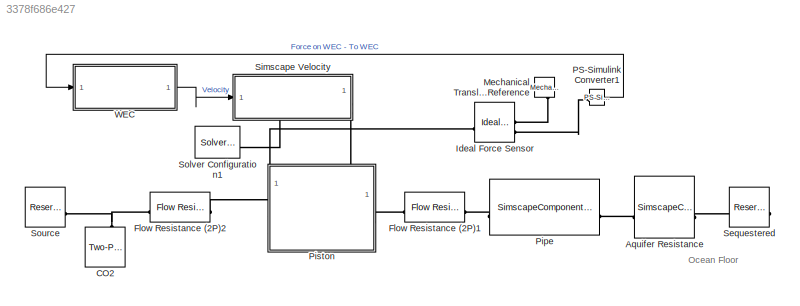
MODEL slx_3378f686e427
KIND model
CONFIG AbsTol = 1e-3
CONFIG EnableMultiTasking = off
CONFIG FixedStep = 0.01
CONFIG MaxStep = 0.01
CONFIG MinStep = auto
CONFIG RelTol = 1e-3
CONFIG SampleTimeConstraint = Unconstrained
CONFIG SolverName = daessc
CONFIG StartTime = 0
CONFIG StopTime = 100
BLOCK [SimscapeComponentBlock] Aquifer Resistance
  ClassName = aquiferblock
  ComponentPath = aquiferblock
  ComponentVariantNames = ["aquiferblock"]
  ComponentVariants = ["aquiferblock"]
  CopyFcn = simscape.engine.sli.internal.componentblockcallback(gcbh,'COPY')
  InternalSimscapePortConfiguration = {"Bottom":[],"Left":[{"id":"A","label":"A","type":"foundation.two_phase_fluid.two_phase_fluid"}],"Right":[{"id":"B","label":"B","type":"foundation.two_phase_fluid.two_phase_fluid"}],"Top":[]}
  K = 3e-12
  K_conf = compiletime
  K_unit = m^2
  MaskType = Flow Resistance (2P)
  PreCopyFcn = simscape.engine.sli.internal.componentblockcallback(gcbh,'PRECOPY')
  PreDeleteFcn = simscape.engine.sli.internal.componentblockcallback(gcbh,'PREDELETE')
  SchemaVersion = 1
  SourceFile = aquiferblock
  area = 5e6
  area_conf = compiletime
  area_unit = m^2
  h = 3e2
  h_conf = compiletime
  h_unit = m
  mu = 6e-5
  mu_conf = compiletime
  mu_unit = Pa*s
BLOCK [Reference] CO2  REF=SimscapeFluids_lib/Two-Phase Fluid/Utilities/Two-Phase Fluid
Predefined
Properties (2P)
  NameLocation = right
  SourceBlock = SimscapeFluids_lib/Two-Phase Fluid/Utilities/Two-Phase Fluid\nPredefined\nProperties (2P)
  SourceType = Two-Phase Fluid\nPredefined\nProperties (2P)
BLOCK [Reference] Flow Resistance (2P)1  REF=fl_lib/Two-Phase Fluid/Elements/Flow Resistance (2P)
  NameLocation = top
  SourceBlock = fl_lib/Two-Phase Fluid/Elements/Flow Resistance (2P)
  SourceType = Flow Resistance (2P)
BLOCK [Reference] Flow Resistance (2P)2  REF=fl_lib/Two-Phase Fluid/Elements/Flow Resistance (2P)
  SourceBlock = fl_lib/Two-Phase Fluid/Elements/Flow Resistance (2P)
  SourceType = Flow Resistance (2P)
BLOCK [Reference] Ideal Force Sensor  REF=fl_lib/Mechanical/Mechanical Sensors/Ideal Force Sensor
  SourceBlock = fl_lib/Mechanical/Mechanical Sensors/Ideal Force Sensor
  SourceType = Ideal Force Sensor
BLOCK [Reference] Mechanical Translational Reference  REF=fl_lib/Mechanical/Translational
Elements/Mechanical
Translational
Reference
  NameLocation = right
  SourceBlock = fl_lib/Mechanical/Translational\nElements/Mechanical\nTranslational\nReference
  SourceType = Mechanical\nTranslational\nReference
BLOCK [Reference] PS-Simulink Converter1  REF=nesl_utility/PS-Simulink
Converter
  SourceBlock = nesl_utility/PS-Simulink\nConverter
  SourceType = PS-Simulink\nConverter
BLOCK [SimscapeComponentBlock] Pipe
  ClassName = segmentedpipe_2P
  ComponentPath = segmentedpipe_2P
  ComponentVariantNames = ["segmentedpipe_2P"]
  ComponentVariants = ["segmentedpipe_2P"]
  CopyFcn = simscape.engine.sli.internal.componentblockcallback(gcbh,'COPY')
  Dh = d_pipe
  Dh_conf = compiletime
  Dh_unit = m
  InternalSimscapePortConfiguration = {"Bottom":[],"Left":[{"id":"A","label":"A","type":"foundation.two_phase_fluid.two_phase_fluid"}],"Right":[{"id":"B","label":"B","type":"foundation.two_phase_fluid.two_phase_fluid"}],"Top":[]}
  MaskType = segmentedpipe_2P
  N = N
  N_conf = compiletime
  N_unit = 1
  PreCopyFcn = simscape.engine.sli.internal.componentblockcallback(gcbh,'PRECOPY')
  PreDeleteFcn = simscape.engine.sli.internal.componentblockcallback(gcbh,'PREDELETE')
  SchemaVersion = 1
  SourceFile = segmentedpipe_2P
  T_init = T
  T_init_conf = compiletime
  T_init_unit = K
  area = A_pipe
  area_conf = compiletime
  area_unit = m^2
  g = g
  g_conf = compiletime
  g_unit = m/s^2
  p_init = P_floor
  p_init_conf = compiletime
  p_init_unit = MPa
  segm_length = H/N
  segm_length_conf = compiletime
  segm_length_unit = m
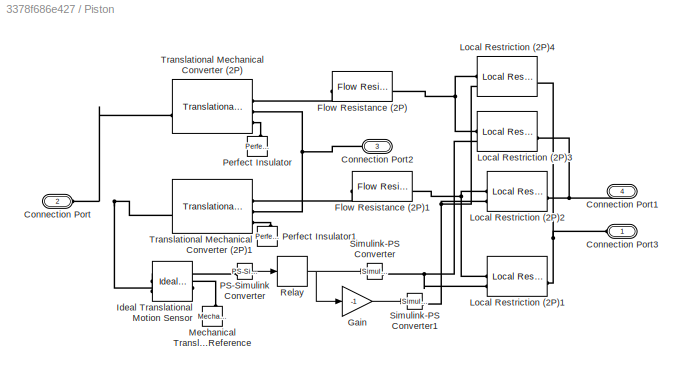
BLOCK [SubSystem] Piston
  PortSchema = {"entries":[{"content":{"sides":[{"content":{"connectorIds":["LConn1"]},"type":"ConnectorPlacement.EquallySpacedRectSide","uuid":"7019ddc4-d8ce-43f2-8b4e-ea332f4aaeee"},{"content":{"connectorIds":["RConn1"],"side":"RIGHT"},"type":"ConnectorPlacement.EquallySpacedRectSide","uuid":"7985d674-21d2-45f1-974e-88451809d901"},{"content":{"connectorIds":["LConn2","LConn3"],"side":"TOP"},"type":"ConnectorPl...<+388ch>
BLOCK [PMIOPort] Piston/Connection Port
  Port = 2
  Side = Left
BLOCK [PMIOPort] Piston/Connection Port1
  Port = 4
  Side = Right
BLOCK [PMIOPort] Piston/Connection Port2
  Port = 3
  Side = Left
BLOCK [PMIOPort] Piston/Connection Port3
  Side = Left
BLOCK [Reference] Piston/Flow Resistance (2P)  REF=fl_lib/Two-Phase Fluid/Elements/Flow Resistance (2P)
  SourceBlock = fl_lib/Two-Phase Fluid/Elements/Flow Resistance (2P)
  SourceType = Flow Resistance (2P)
BLOCK [Reference] Piston/Flow Resistance (2P)1  REF=fl_lib/Two-Phase Fluid/Elements/Flow Resistance (2P)
  SourceBlock = fl_lib/Two-Phase Fluid/Elements/Flow Resistance (2P)
  SourceType = Flow Resistance (2P)
BLOCK [Gain] Piston/Gain
  Gain = -1
BLOCK [Reference] Piston/Ideal Translational Motion Sensor  REF=fl_lib/Mechanical/Mechanical Sensors/Ideal Translational
Motion Sensor
  SourceBlock = fl_lib/Mechanical/Mechanical Sensors/Ideal Translational\nMotion Sensor
  SourceType = Ideal Translational\nMotion Sensor
BLOCK [Reference] Piston/Local Restriction (2P)1  REF=fl_lib/Two-Phase Fluid/Elements/Local Restriction
(2P)
  SourceBlock = fl_lib/Two-Phase Fluid/Elements/Local Restriction\n(2P)
  SourceType = Local Restriction\n(2P)
BLOCK [Reference] Piston/Local Restriction (2P)2  REF=fl_lib/Two-Phase Fluid/Elements/Local Restriction
(2P)
  SourceBlock = fl_lib/Two-Phase Fluid/Elements/Local Restriction\n(2P)
  SourceType = Local Restriction\n(2P)
BLOCK [Reference] Piston/Local Restriction (2P)3  REF=fl_lib/Two-Phase Fluid/Elements/Local Restriction
(2P)
  SourceBlock = fl_lib/Two-Phase Fluid/Elements/Local Restriction\n(2P)
  SourceType = Local Restriction\n(2P)
BLOCK [Reference] Piston/Local Restriction (2P)4  REF=fl_lib/Two-Phase Fluid/Elements/Local Restriction
(2P)
  SourceBlock = fl_lib/Two-Phase Fluid/Elements/Local Restriction\n(2P)
  SourceType = Local Restriction\n(2P)
BLOCK [Reference] Piston/Mechanical Translational Reference  REF=fl_lib/Mechanical/Translational
Elements/Mechanical
Translational
Reference
  NameLocation = right
  SourceBlock = fl_lib/Mechanical/Translational\nElements/Mechanical\nTranslational\nReference
  SourceType = Mechanical\nTranslational\nReference
BLOCK [Reference] Piston/PS-Simulink Converter  REF=nesl_utility/PS-Simulink
Converter
  SourceBlock = nesl_utility/PS-Simulink\nConverter
  SourceType = PS-Simulink\nConverter
BLOCK [Reference] Piston/Perfect Insulator  REF=fl_lib/Thermal/Thermal Elements/Perfect Insulator
  NameLocation = right
  SourceBlock = fl_lib/Thermal/Thermal Elements/Perfect Insulator
  SourceType = Perfect Insulator
BLOCK [Reference] Piston/Perfect Insulator1  REF=fl_lib/Thermal/Thermal Elements/Perfect Insulator
  NameLocation = right
  SourceBlock = fl_lib/Thermal/Thermal Elements/Perfect Insulator
  SourceType = Perfect Insulator
BLOCK [Relay] Piston/Relay
  OffOutputValue = -1
  OffSwitchValue = 0
  OnSwitchValue = 0
BLOCK [Reference] Piston/Simulink-PS Converter  REF=nesl_utility/Simulink-PS
Converter
  SourceBlock = nesl_utility/Simulink-PS\nConverter
  SourceType = Simulink-PS\nConverter
BLOCK [Reference] Piston/Simulink-PS Converter1  REF=nesl_utility/Simulink-PS
Converter
  SourceBlock = nesl_utility/Simulink-PS\nConverter
  SourceType = Simulink-PS\nConverter
BLOCK [Reference] Piston/Translational Mechanical Converter (2P)  REF=fl_lib/Two-Phase Fluid/Elements/Translational
Mechanical Converter
(2P)
  SourceBlock = fl_lib/Two-Phase Fluid/Elements/Translational\nMechanical Converter\n(2P)
  SourceType = Translational\nMechanical Converter\n(2P)
BLOCK [Reference] Piston/Translational Mechanical Converter (2P)1  REF=fl_lib/Two-Phase Fluid/Elements/Translational
Mechanical Converter
(2P)
  SourceBlock = fl_lib/Two-Phase Fluid/Elements/Translational\nMechanical Converter\n(2P)
  SourceType = Translational\nMechanical Converter\n(2P)
BLOCK [Reference] Sequestered  REF=fl_lib/Two-Phase Fluid/Elements/Reservoir (2P)
  SourceBlock = fl_lib/Two-Phase Fluid/Elements/Reservoir (2P)
  SourceType = Reservoir (2P)
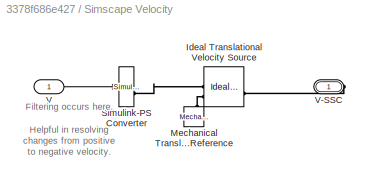
BLOCK [SubSystem] Simscape Velocity
  PortSchema = {"entries":[{"content":{"sides":[{"content":{"connectorIds":["In1"]},"type":"ConnectorPlacement.EquallySpacedRectSide","uuid":"29be8089-37ae-492d-a11a-e2815524b6c8"},{"content":{"side":"RIGHT"},"type":"ConnectorPlacement.EquallySpacedRectSide","uuid":"e61fb237-f2e0-4128-aecd-39dd1856904f"},{"content":{"side":"TOP"},"type":"ConnectorPlacement.EquallySpacedRectSide","uuid":"072101a8-0726-462b-b2bf-5...<+350ch>
BLOCK [Reference] Simscape Velocity/Ideal Translational Velocity Source  REF=fl_lib/Mechanical/Mechanical Sources/Ideal Translational
Velocity Source
  SourceBlock = fl_lib/Mechanical/Mechanical Sources/Ideal Translational\nVelocity Source
  SourceType = Ideal Translational\nVelocity Source
BLOCK [Reference] Simscape Velocity/Mechanical Translational Reference  REF=fl_lib/Mechanical/Translational
Elements/Mechanical
Translational
Reference
  NameLocation = right
  SourceBlock = fl_lib/Mechanical/Translational\nElements/Mechanical\nTranslational\nReference
  SourceType = Mechanical\nTranslational\nReference
BLOCK [Reference] Simscape Velocity/Simulink-PS Converter  REF=nesl_utility/Simulink-PS
Converter
  SourceBlock = nesl_utility/Simulink-PS\nConverter
  SourceType = Simulink-PS\nConverter
BLOCK [Inport] Simscape Velocity/V
BLOCK [PMIOPort] Simscape Velocity/V-SSC
  Side = Right
BLOCK [Reference] Solver Configuration1  REF=nesl_utility/Solver
Configuration
  SourceBlock = nesl_utility/Solver\nConfiguration
  SourceType = Solver\nConfiguration
BLOCK [Reference] Source  REF=fl_lib/Two-Phase Fluid/Elements/Reservoir (2P)
  SourceBlock = fl_lib/Two-Phase Fluid/Elements/Reservoir (2P)
  SourceType = Reservoir (2P)
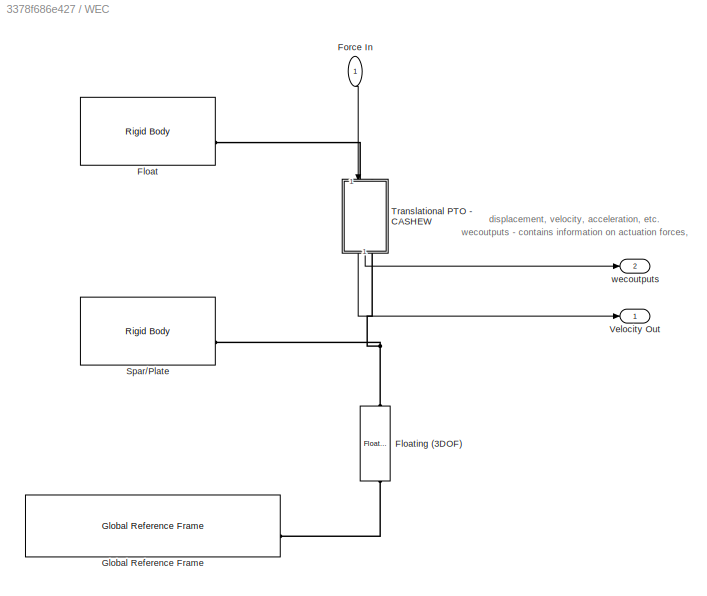
BLOCK [SubSystem] WEC
BLOCK [Reference] WEC/Float  REF=WECSim_Lib_Body_Elements/Rigid Body
  AttributesFormatString = %<body>
  SourceBlock = WECSim_Lib_Body_Elements/Rigid Body
  SourceType = Rigid Body
BLOCK [Reference] WEC/Floating (3DOF)  REF=WECSim_Lib_Constraints/Floating (3DOF)
  AttributesFormatString = %<constraint>
  NameLocation = right
  SourceBlock = WECSim_Lib_Constraints/Floating (3DOF)
  SourceType = Constraints
BLOCK [Inport] WEC/Force In
  NameLocation = left
BLOCK [Reference] WEC/Global Reference Frame  REF=WECSim_Lib_Frames/Global Reference Frame
  SourceBlock = WECSim_Lib_Frames/Global Reference Frame
  SourceType = Frames
BLOCK [Reference] WEC/Spar//Plate  REF=WECSim_Lib_Body_Elements/Rigid Body
  AttributesFormatString = %<body>
  SourceBlock = WECSim_Lib_Body_Elements/Rigid Body
  SourceType = Rigid Body
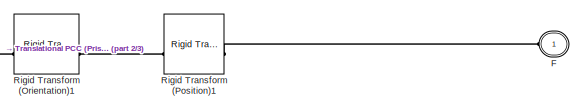
[diagram: WEC/Translational PTO - CASHEW - part 1/3, top right region]
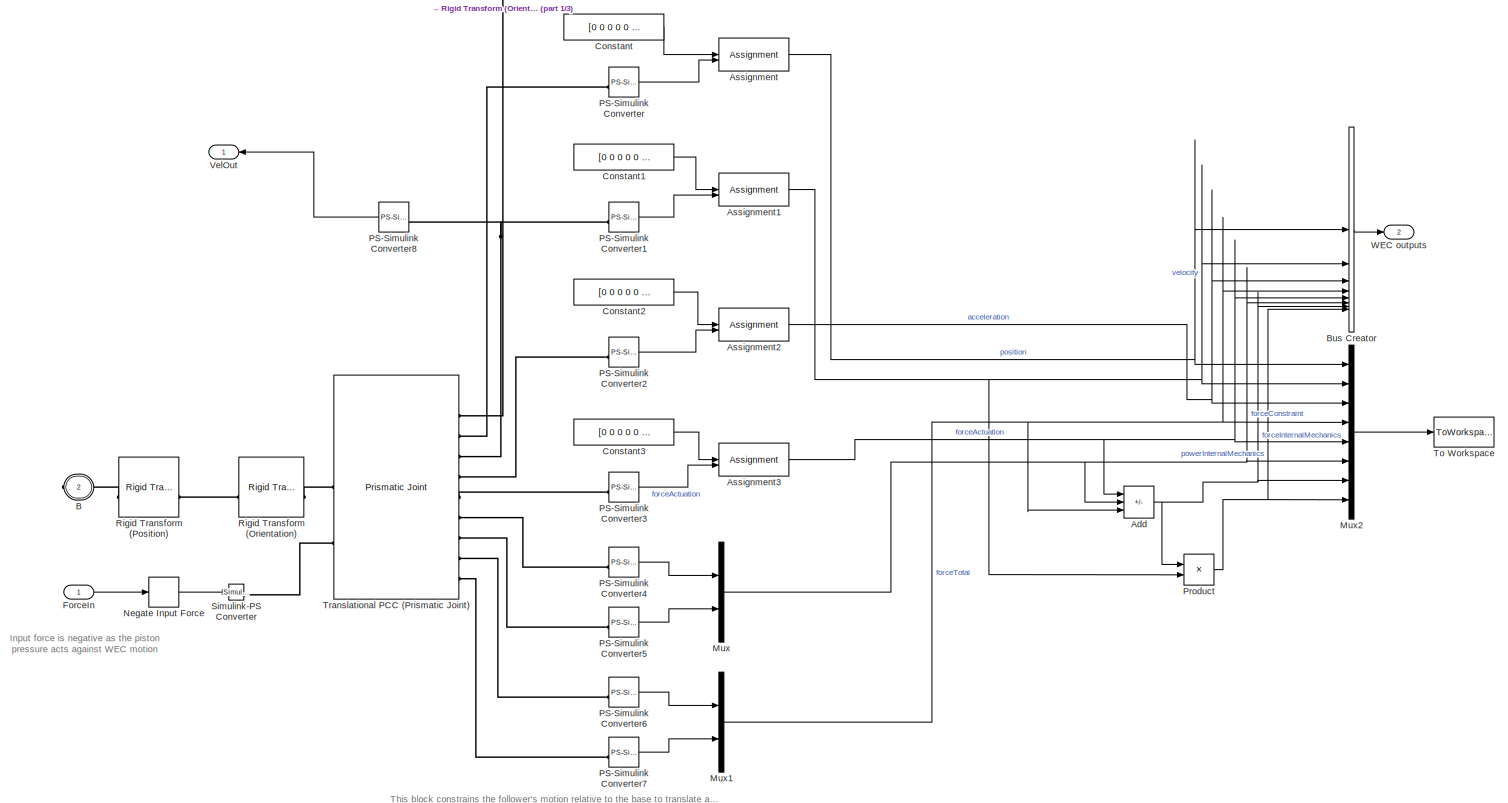
[diagram: WEC/Translational PTO - CASHEW - part 2/3, most of the canvas]
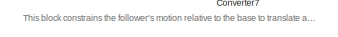
[diagram: WEC/Translational PTO - CASHEW - part 3/3, bottom center region]
BLOCK [SubSystem] WEC/Translational PTO - CASHEW
  AncestorBlock = WECSim_Lib_PTOs/Translational PTO
  AttributesFormatString = %<pto>
  NameLocation = right
BLOCK [Sum] WEC/Translational PTO - CASHEW/Add
  IconShape = rectangular
  Inputs = --+
BLOCK [Assignment] WEC/Translational PTO - CASHEW/Assignment
  IndexOptions = Index vector (dialog)
  Indices = 3
  OutputSizes = 1
BLOCK [Assignment] WEC/Translational PTO - CASHEW/Assignment1
  IndexOptions = Index vector (dialog)
  Indices = 3
  OutputSizes = 1
BLOCK [Assignment] WEC/Translational PTO - CASHEW/Assignment2
  IndexOptions = Index vector (dialog)
  Indices = 3
  OutputSizes = 1
BLOCK [Assignment] WEC/Translational PTO - CASHEW/Assignment3
  IndexOptions = Index vector (dialog)
  Indices = 3
  OutputSizes = 1
BLOCK [PMIOPort] WEC/Translational PTO - CASHEW/B
  Port = 2
  Side = Right
BLOCK [BusCreator] WEC/Translational PTO - CASHEW/Bus Creator
  DisplayOption = bar
  InheritFromInputs = on
  Inputs = 8
BLOCK [Constant] WEC/Translational PTO - CASHEW/Constant
  Value = [0 0 0 0 0 0]
BLOCK [Constant] WEC/Translational PTO - CASHEW/Constant1
  Value = [0 0 0 0 0 0]
BLOCK [Constant] WEC/Translational PTO - CASHEW/Constant2
  Value = [0 0 0 0 0 0]
BLOCK [Constant] WEC/Translational PTO - CASHEW/Constant3
  Value = [0 0 0 0 0 0]
BLOCK [PMIOPort] WEC/Translational PTO - CASHEW/F
  Side = Left
BLOCK [Inport] WEC/Translational PTO - CASHEW/ForceIn
BLOCK [Mux] WEC/Translational PTO - CASHEW/Mux
  DisplayOption = bar
  Inputs = 2
BLOCK [Mux] WEC/Translational PTO - CASHEW/Mux1
  DisplayOption = bar
  Inputs = 2
BLOCK [Mux] WEC/Translational PTO - CASHEW/Mux2
  DisplayOption = bar
  Inputs = 8
BLOCK [UnaryMinus] WEC/Translational PTO - CASHEW/Negate Input Force
BLOCK [Reference] WEC/Translational PTO - CASHEW/PS-Simulink Converter  REF=nesl_utility/PS-Simulink
Converter
  SourceBlock = nesl_utility/PS-Simulink\nConverter
  SourceType = PS-Simulink\nConverter
BLOCK [Reference] WEC/Translational PTO - CASHEW/PS-Simulink Converter1  REF=nesl_utility/PS-Simulink
Converter
  SourceBlock = nesl_utility/PS-Simulink\nConverter
  SourceType = PS-Simulink\nConverter
BLOCK [Reference] WEC/Translational PTO - CASHEW/PS-Simulink Converter2  REF=nesl_utility/PS-Simulink
Converter
  SourceBlock = nesl_utility/PS-Simulink\nConverter
  SourceType = PS-Simulink\nConverter
BLOCK [Reference] WEC/Translational PTO - CASHEW/PS-Simulink Converter3  REF=nesl_utility/PS-Simulink
Converter
  SourceBlock = nesl_utility/PS-Simulink\nConverter
  SourceType = PS-Simulink\nConverter
BLOCK [Reference] WEC/Translational PTO - CASHEW/PS-Simulink Converter4  REF=nesl_utility/PS-Simulink
Converter
  SourceBlock = nesl_utility/PS-Simulink\nConverter
  SourceType = PS-Simulink\nConverter
BLOCK [Reference] WEC/Translational PTO - CASHEW/PS-Simulink Converter5  REF=nesl_utility/PS-Simulink
Converter
  SourceBlock = nesl_utility/PS-Simulink\nConverter
  SourceType = PS-Simulink\nConverter
BLOCK [Reference] WEC/Translational PTO - CASHEW/PS-Simulink Converter6  REF=nesl_utility/PS-Simulink
Converter
  SourceBlock = nesl_utility/PS-Simulink\nConverter
  SourceType = PS-Simulink\nConverter
BLOCK [Reference] WEC/Translational PTO - CASHEW/PS-Simulink Converter7  REF=nesl_utility/PS-Simulink
Converter
  SourceBlock = nesl_utility/PS-Simulink\nConverter
  SourceType = PS-Simulink\nConverter
BLOCK [Reference] WEC/Translational PTO - CASHEW/PS-Simulink Converter8  REF=nesl_utility/PS-Simulink
Converter
  SourceBlock = nesl_utility/PS-Simulink\nConverter
  SourceType = PS-Simulink\nConverter
BLOCK [Product] WEC/Translational PTO - CASHEW/Product
BLOCK [Reference] WEC/Translational PTO - CASHEW/Rigid Transform (Orientation)  REF=sm_lib/Frames and
Transforms/Rigid
Transform
  SourceBlock = sm_lib/Frames and\nTransforms/Rigid\nTransform
  SourceType = Rigid\nTransform
BLOCK [Reference] WEC/Translational PTO - CASHEW/Rigid Transform (Orientation)1  REF=sm_lib/Frames and
Transforms/Rigid
Transform
  SourceBlock = sm_lib/Frames and\nTransforms/Rigid\nTransform
  SourceType = Rigid\nTransform
BLOCK [Reference] WEC/Translational PTO - CASHEW/Rigid Transform (Position)  REF=sm_lib/Frames and
Transforms/Rigid
Transform
  SourceBlock = sm_lib/Frames and\nTransforms/Rigid\nTransform
  SourceType = Rigid\nTransform
BLOCK [Reference] WEC/Translational PTO - CASHEW/Rigid Transform (Position)1  REF=sm_lib/Frames and
Transforms/Rigid
Transform
  SourceBlock = sm_lib/Frames and\nTransforms/Rigid\nTransform
  SourceType = Rigid\nTransform
BLOCK [Reference] WEC/Translational PTO - CASHEW/Simulink-PS Converter  REF=nesl_utility/Simulink-PS
Converter
  SourceBlock = nesl_utility/Simulink-PS\nConverter
  SourceType = Simulink-PS\nConverter
BLOCK [ToWorkspace] WEC/Translational PTO - CASHEW/To Workspace
  FixptAsFi = on
  MaxDataPoints = inf
  SampleTime = simu.dtOut
  SaveFormat = Structure With Time
  VariableName = pto1_out
BLOCK [Reference] WEC/Translational PTO - CASHEW/Translational PCC (Prismatic Joint)  REF=sm_lib/Joints/Prismatic
Joint
  SourceBlock = sm_lib/Joints/Prismatic\nJoint
  SourceType = Prismatic\nJoint
BLOCK [Outport] WEC/Translational PTO - CASHEW/VelOut
BLOCK [Outport] WEC/Translational PTO - CASHEW/WEC outputs
  Port = 2
BLOCK [Outport] WEC/Velocity Out
BLOCK [Outport] WEC/wecoutputs
  Port = 2
ANNOTATION (root): Ocean Floor
ANNOTATION Simscape Velocity: Filtering occurs here. Helpful in resolving changes from positive to negative velocity.
ANNOTATION WEC: wecoutputs - contains information on actuation forces, displacement, velocity, acceleration, etc.
ANNOTATION WEC/Translational PTO - CASHEW: This block constrains the follower's motion relative to the base to translate along the PTO's z-axis. The forces required for the constraint and the updated response are output of the joint, converted to Simulink, assigned to the correct dimension for wecSim, and output.
ANNOTATION WEC/Translational PTO - CASHEW: Input force is negative as the piston pressure acts against WEC motion
LINE PS-Simulink Converter1:1 -> WEC:1
LINE Piston/Gain:1 -> Piston/Simulink-PS Converter1:1
LINE Piston/PS-Simulink Converter:1 -> Piston/Relay:1
NET Piston/Relay:1 -> Piston/Gain:1, Piston/Simulink-PS Converter:1
LINE Simscape Velocity/V:1 -> Simscape Velocity/Simulink-PS Converter:1
LINE WEC/Force In:1 -> WEC/Translational PTO - CASHEW:1
LINE WEC/Translational PTO - CASHEW:1 -> WEC/Velocity Out:1
LINE WEC/Translational PTO - CASHEW:2 -> WEC/wecoutputs:1
LINE WEC:1 -> Simscape Velocity:1
PLINE Aquifer Resistance:LConn1 -- Pipe:RConn1
PLINE Aquifer Resistance:RConn1 -- Sequestered:LConn1
PNET net1: CO2:RConn1 -- Flow Resistance (2P)2:LConn1 -- Source:LConn1
PLINE Flow Resistance (2P)1:LConn1 -- Pipe:LConn1
PLINE Flow Resistance (2P)1:RConn1 -- Piston:RConn1
PLINE Flow Resistance (2P)2:RConn1 -- Piston:LConn1
PLINE Ideal Force Sensor:LConn1 -- Piston:LConn3
PLINE Ideal Force Sensor:RConn1 -- Mechanical Translational Reference:LConn1
PLINE Ideal Force Sensor:RConn2 -- PS-Simulink Converter1:LConn1
PNET net2: Piston/Connection Port1:RConn1 -- Piston/Local Restriction (2P)2:RConn1 -- Piston/Local Restriction (2P)3:RConn1
PNET net3: Piston/Connection Port2:RConn1 -- Piston/Translational Mechanical Converter (2P)1:LConn2 -- Piston/Translational Mechanical Converter (2P):LConn2
PNET net4: Piston/Connection Port3:RConn1 -- Piston/Local Restriction (2P)1:RConn1 -- Piston/Local Restriction (2P)4:RConn1
PNET net5: Piston/Connection Port:RConn1 -- Piston/Ideal Translational Motion Sensor:LConn1 -- Piston/Translational Mechanical Converter (2P)1:RConn1 -- Piston/Translational Mechanical Converter (2P):RConn1
PLINE Piston/Flow Resistance (2P)1:LConn1 -- Piston/Translational Mechanical Converter (2P)1:LConn1
PNET net6: Piston/Flow Resistance (2P)1:RConn1 -- Piston/Local Restriction (2P)1:LConn1 -- Piston/Local Restriction (2P)2:LConn1
PLINE Piston/Flow Resistance (2P):LConn1 -- Piston/Translational Mechanical Converter (2P):LConn1
PNET net7: Piston/Flow Resistance (2P):RConn1 -- Piston/Local Restriction (2P)3:LConn1 -- Piston/Local Restriction (2P)4:LConn1
PLINE Piston/Ideal Translational Motion Sensor:RConn1 -- Piston/Mechanical Translational Reference:LConn1
PLINE Piston/Ideal Translational Motion Sensor:RConn2 -- Piston/PS-Simulink Converter:LConn1
PNET net8: Piston/Local Restriction (2P)1:LConn2 -- Piston/Local Restriction (2P)3:LConn2 -- Piston/Simulink-PS Converter:RConn1
PNET net9: Piston/Local Restriction (2P)2:LConn2 -- Piston/Local Restriction (2P)4:LConn2 -- Piston/Simulink-PS Converter1:RConn1
PLINE Piston/Perfect Insulator1:LConn1 -- Piston/Translational Mechanical Converter (2P)1:LConn3
PLINE Piston/Perfect Insulator:LConn1 -- Piston/Translational Mechanical Converter (2P):LConn3
PNET net10: Piston:LConn2 -- Simscape Velocity:RConn1 -- Solver Configuration1:RConn1
PLINE Simscape Velocity/Ideal Translational Velocity Source:LConn1 -- Simscape Velocity/V-SSC:RConn1
PLINE Simscape Velocity/Ideal Translational Velocity Source:RConn1 -- Simscape Velocity/Simulink-PS Converter:RConn1
PLINE Simscape Velocity/Ideal Translational Velocity Source:RConn2 -- Simscape Velocity/Mechanical Translational Reference:LConn1
PLINE WEC/Float:RConn1 -- WEC/Translational PTO - CASHEW:LConn1
PLINE WEC/Floating (3DOF):LConn1 -- WEC/Global Reference Frame:RConn1
PNET net11: WEC/Floating (3DOF):RConn1 -- WEC/Spar//Plate:RConn1 -- WEC/Translational PTO - CASHEW:RConn1
note: NET lines group one-source signal fan-out (src -> all destinations, sorted); 1:1 wires keep LINE; PNET lines group multi-terminal physical nets as a canonical sorted terminal list (undirected conserving connections); 2-terminal nets keep the pairwise PLINE form
